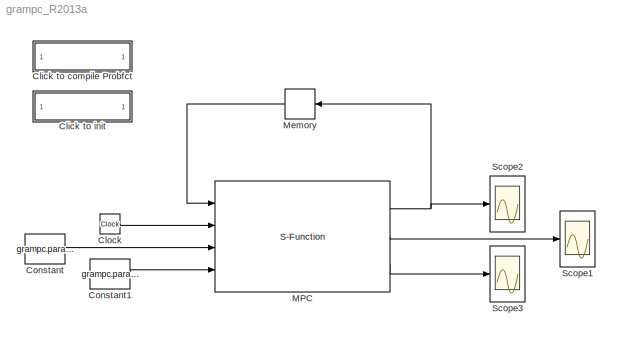
MODEL grampc_R2013a
KIND model
BLOCK [SubSystem] Click to compile Probfct
  OpenFcn = cd(fileparts(which(gcs)))\n    if exist('make','file') ~= 2\n      curPath = cd;\n      cd('..');\n      addpath(cd);\n      cd(curPath);\n    end\nmake probfct_QUADROTOR.c
  Ports = []
  RequestExecContextInheritance = off
  SID = 23
BLOCK [SubSystem] Click to init
  OpenFcn = cd(fileparts(which(gcs)))\n[grampc,Tsim] = initData;
  Ports = []
  RequestExecContextInheritance = off
  SID = 24
BLOCK [Clock] Clock
  SID = 22
BLOCK [Constant] Constant
  SID = 3
  Value = grampc.param.xdes
BLOCK [Constant] Constant1
  SID = 12
  Value = grampc.param.udes
BLOCK [S-Function] MPC
  EnableBusSupport = off
  FunctionName = grampc_run_Sfct
  Parameters = grampc
  Ports = [4, 3]
  SFcnIsStateOwnerBlock = off
  SFunctionDeploymentMode = off
  SID = 2
BLOCK [Memory] Memory
  InitialCondition = grampc.param.xk
  SID = 13
BLOCK [Scope] Scope1
  Floating = off
  NumInputPorts = 1
  Ports = [1]
  SID = 19
  ScopeSpecificationString = C++SS(StrPVP('Open','off'),StrPVP('TimeRange','auto'),StrPVP('TickLabels','OneTimeTick'),StrPVP('ShowLegends','off'),StrPVP('LimitDataPoints','off'),StrPVP('MaxDataPoints','5000'),StrPVP('SaveToWorkspace','off'),StrPVP('SaveName','ScopeData'),StrPVP('YMin','-1.25'),StrPVP('YMax','1.25'),StrPVP('BlockParamSampleInput','off'),StrPVP('BlockParamSampleTime','-1'),StrPVP('ZoomMode','on'),StrPVP('Grid',...<+742ch>
BLOCK [Scope] Scope2
  Floating = off
  NumInputPorts = 1
  Ports = [1]
  SID = 18
  ScopeSpecificationString = C++SS(StrPVP('Open','off'),StrPVP('TimeRange','auto'),StrPVP('TickLabels','OneTimeTick'),StrPVP('ShowLegends','off'),StrPVP('LimitDataPoints','off'),StrPVP('MaxDataPoints','5000'),StrPVP('SaveToWorkspace','off'),StrPVP('SaveName','ScopeData2'),StrPVP('YMin','-0.93954'),StrPVP('YMax','1.21359'),StrPVP('BlockParamSampleInput','off'),StrPVP('BlockParamSampleTime','-1'),StrPVP('ZoomMode','on'),StrPVP(...<+749ch>
BLOCK [Scope] Scope3
  Floating = off
  NumInputPorts = 1
  Ports = [1]
  SID = 20
  ScopeSpecificationString = C++SS(StrPVP('Open','off'),StrPVP('TimeRange','auto'),StrPVP('TickLabels','OneTimeTick'),StrPVP('ShowLegends','off'),StrPVP('LimitDataPoints','off'),StrPVP('MaxDataPoints','5000'),StrPVP('SaveToWorkspace','off'),StrPVP('SaveName','ScopeData1'),StrPVP('YMin','-0.4057'),StrPVP('YMax','4.38126'),StrPVP('BlockParamSampleInput','off'),StrPVP('BlockParamSampleTime','-1'),StrPVP('ZoomMode','on'),StrPVP('...<+745ch>
LINE Clock:1 -> MPC:2
LINE Constant1:1 -> MPC:4
LINE Constant:1 -> MPC:3
NET MPC:1 -> Memory:1, Scope2:1
LINE MPC:2 -> Scope1:1
LINE MPC:3 -> Scope3:1
LINE Memory:1 -> MPC:1
note: NET lines group one-source signal fan-out (src -> all destinations, sorted); 1:1 wires keep LINE
